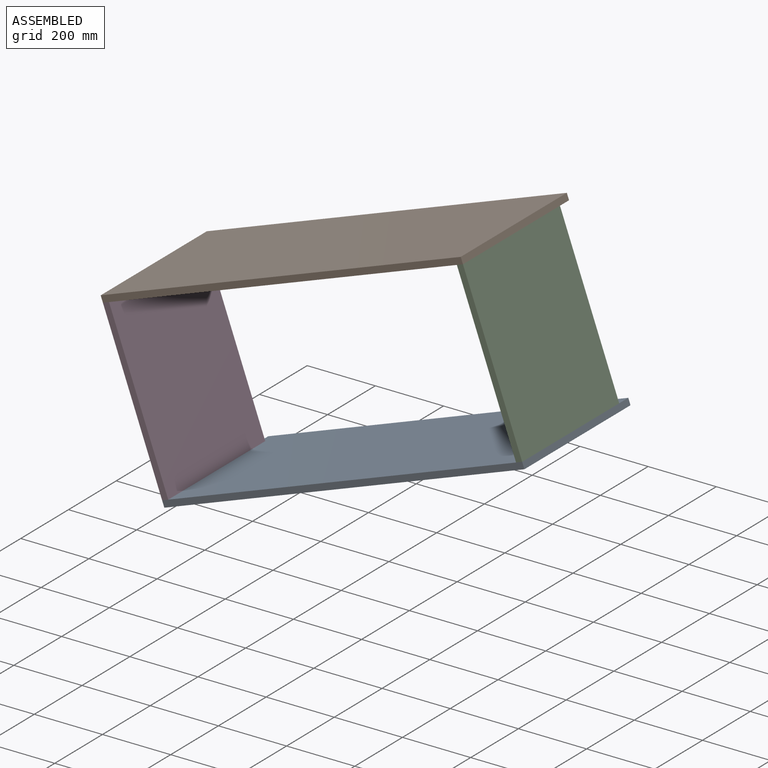
[diagram: assembled view]
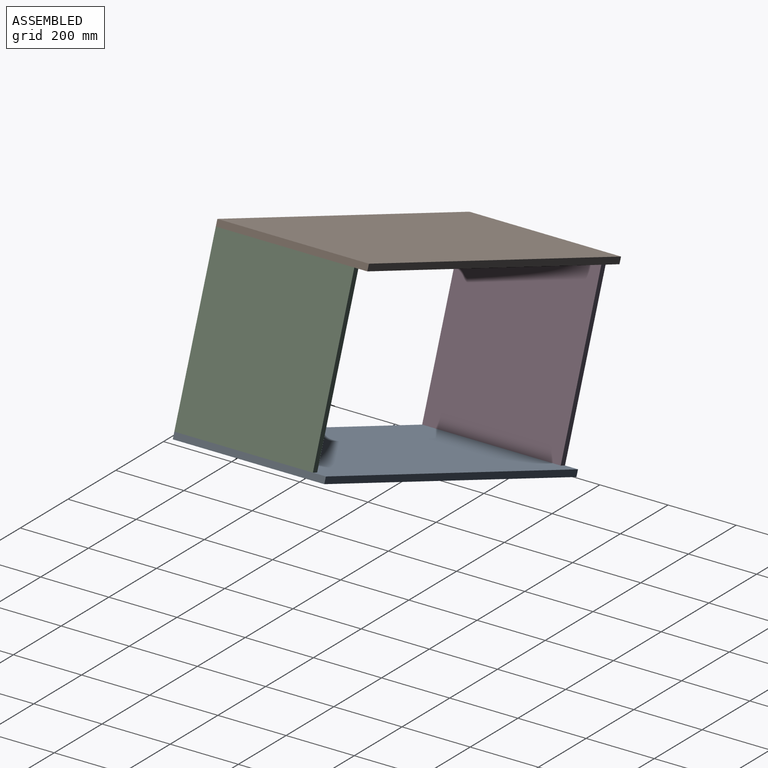
[diagram: assembled view, second angle]
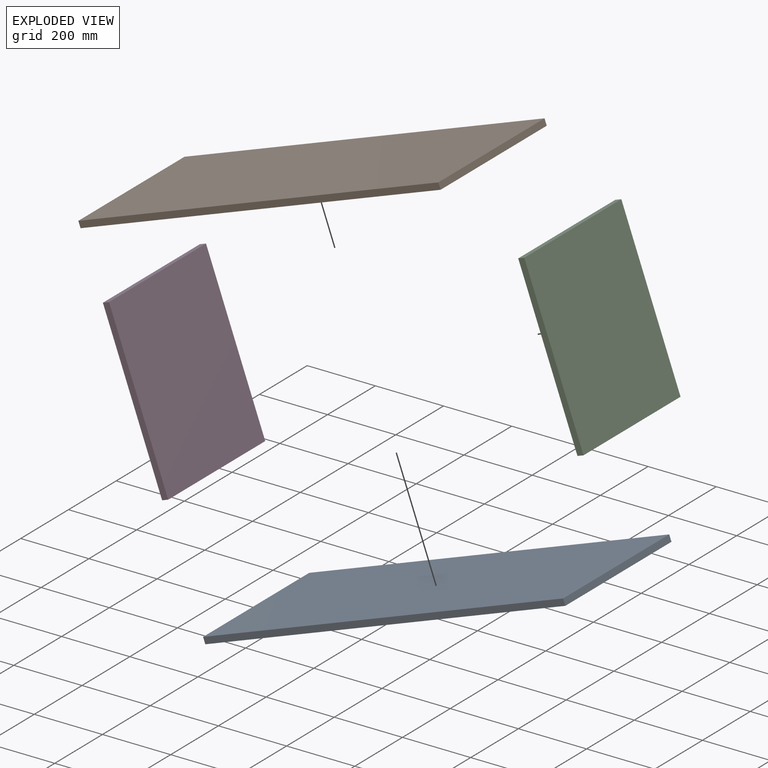
[diagram: exploded view]
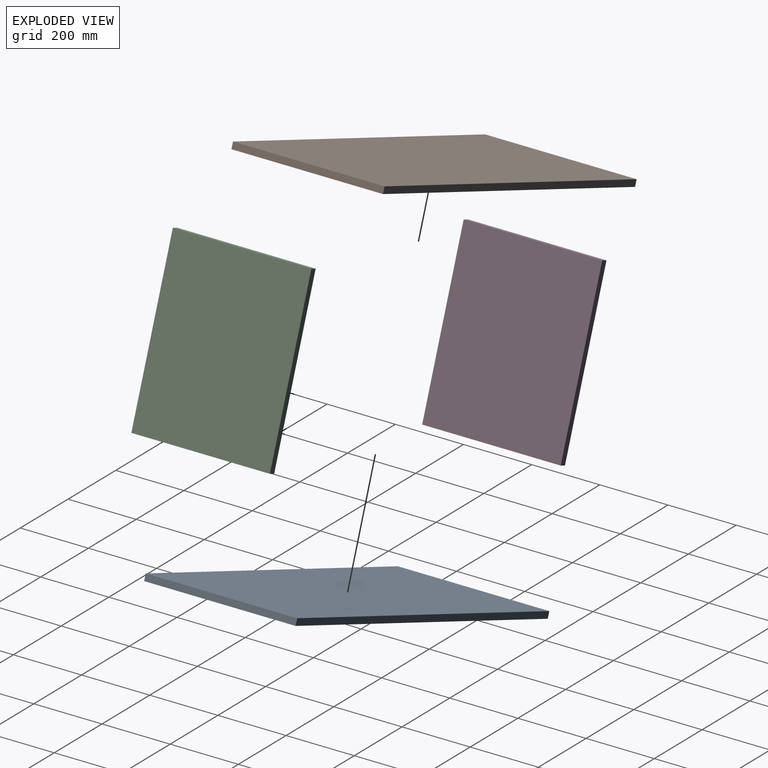
[diagram: exploded view, second angle]
ASSEMBLY  parts=4 mates=3
PART A: 6 faces, bbox 1124x444.5x19.1 mm
  f0: plane 1123.95x19.05mm, normal (0,-1,0), area 21411.2mm2, adj f1,f3,f4,f5
  f1: plane 444.5x19.05mm, normal (1,0,0), area 8467.7mm2, adj f0,f2,f4,f5
  f2: plane 1123.95x19.05mm, normal (0,1,0), area 21411.2mm2, adj f1,f3,f4,f5
  f3: plane 444.5x19.05mm, normal (-1,0,0), area 8467.7mm2, adj f0,f2,f4,f5
  f4: plane 1123.95x444.5mm, normal (0,0,1), area 499595.8mm2, adj f0,f1,f2,f3
  f5: plane 1123.95x444.5mm, normal (0,0,-1), area 499595.8mm2, adj f0,f1,f2,f3
PART B: same geometry as A
PART C: 6 faces, bbox 406.4x19.1x508 mm
  f0: plane 406.4x19.05mm, normal (0,0,1), area 7741.9mm2, adj f1,f3,f4,f5
  f1: plane 508x19.05mm, normal (-1,0,0), area 9677.4mm2, adj f0,f2,f4,f5
  f2: plane 406.4x19.05mm, normal (0,0,-1), area 7741.9mm2, adj f1,f3,f4,f5
  f3: plane 508x19.05mm, normal (1,0,0), area 9677.4mm2, adj f0,f2,f4,f5
  f4: plane 508x406.4mm, normal (0,-1,0), area 206451.2mm2, adj f0,f1,f2,f3
  f5: plane 508x406.4mm, normal (0,1,0), area 206451.2mm2, adj f0,f1,f2,f3
PART D: same geometry as C
PLACE A rot(axis=(0,-1,0),20deg) t=(145.89,-58.21,771.77)mm
PLACE B rot(axis=(0,1,0),160deg) t=(-40.89,-58.21,1284.93)mm
PLACE C rot(axis=(0.7,0.7,0.12),165.9deg) t=(580.58,-77.26,1220.56)mm
PLACE D rot(axis=(0.17,-0.17,-0.97),91.7deg) t=(-457.68,-77.26,842.66)mm
MATE fastened C.f5 <-> B.f3  axis (0.94,0,0.34) through (493.71,-280.46,1459.24)mm
MATE fastened D.f2 <-> A.f4  axis (-0.34,0,0.94) through (-388.71,-280.46,597.46)mm
MATE fastened B.f4 <-> D.f0  axis (0.34,0,-0.94) through (-562.46,-280.46,1074.83)mm
